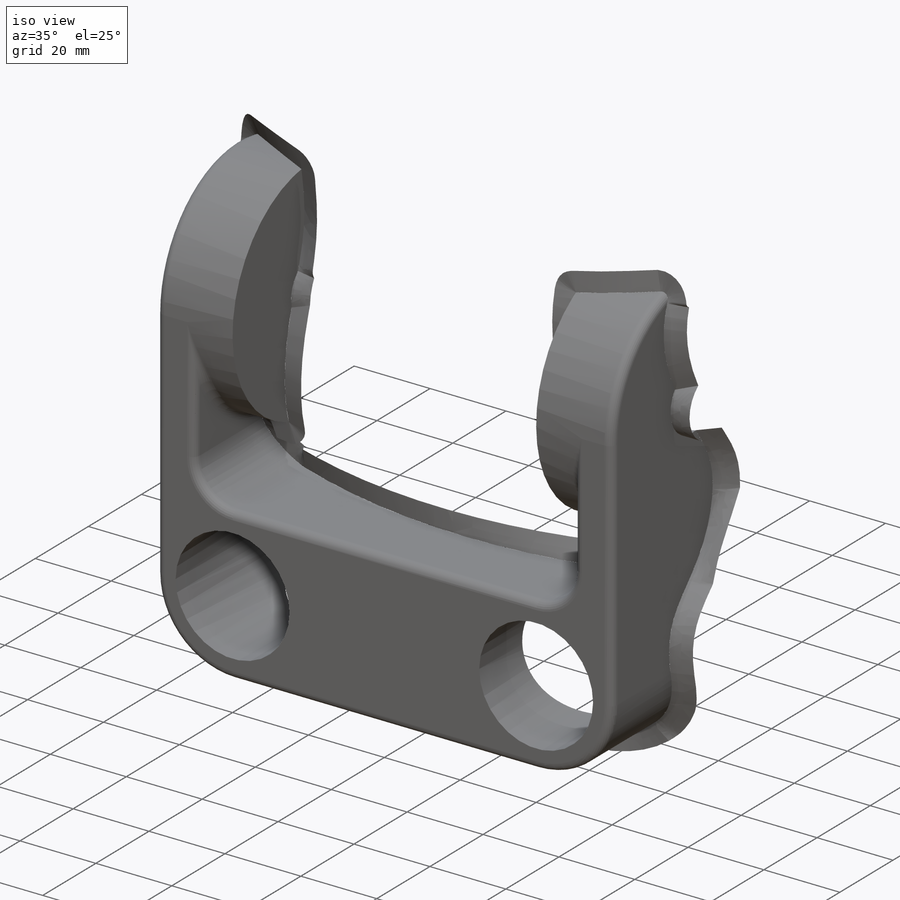
[diagram: iso view]
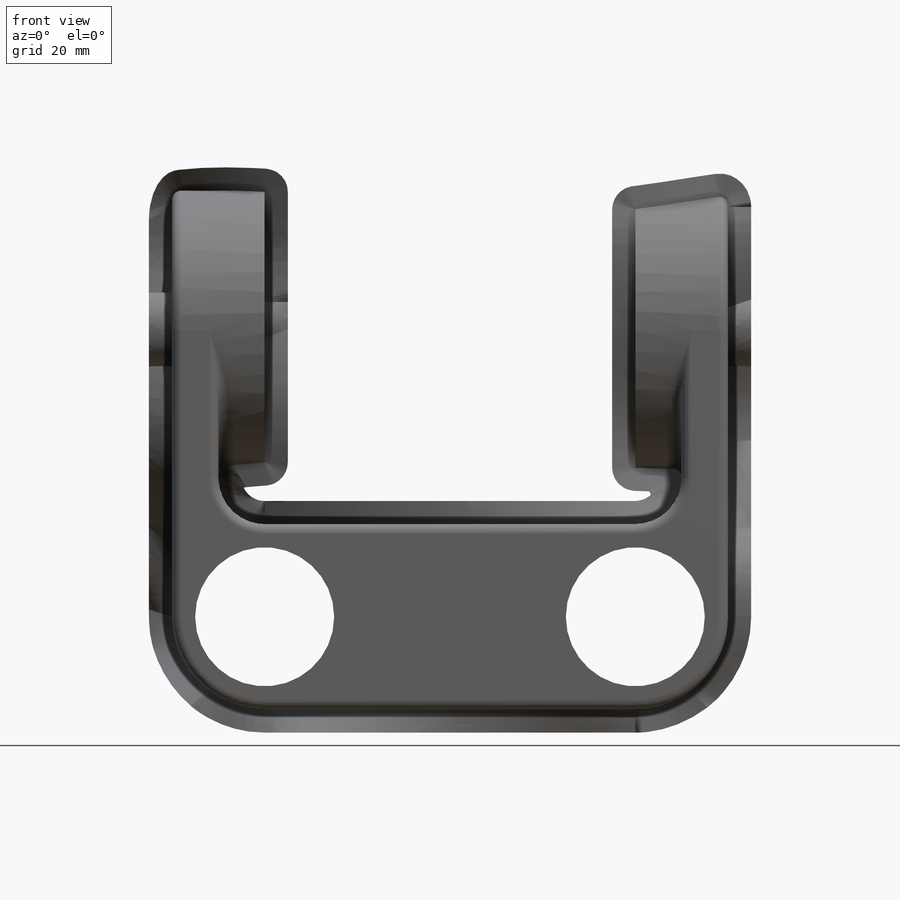
[diagram: front view]
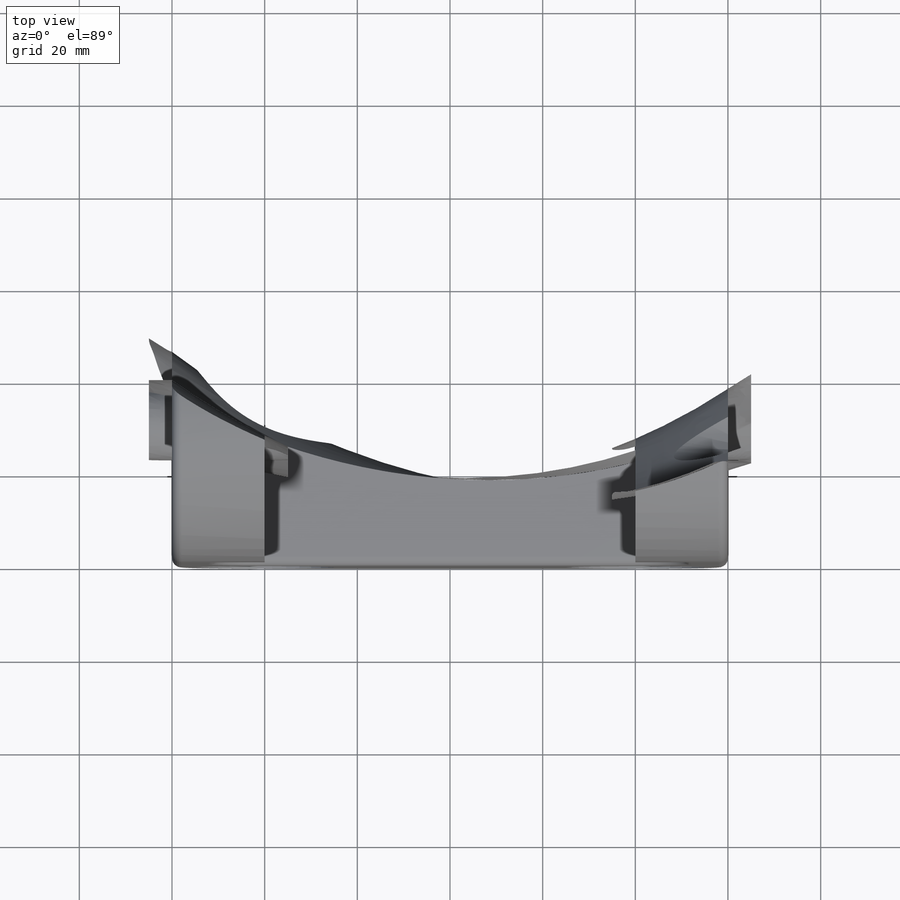
[diagram: top view]
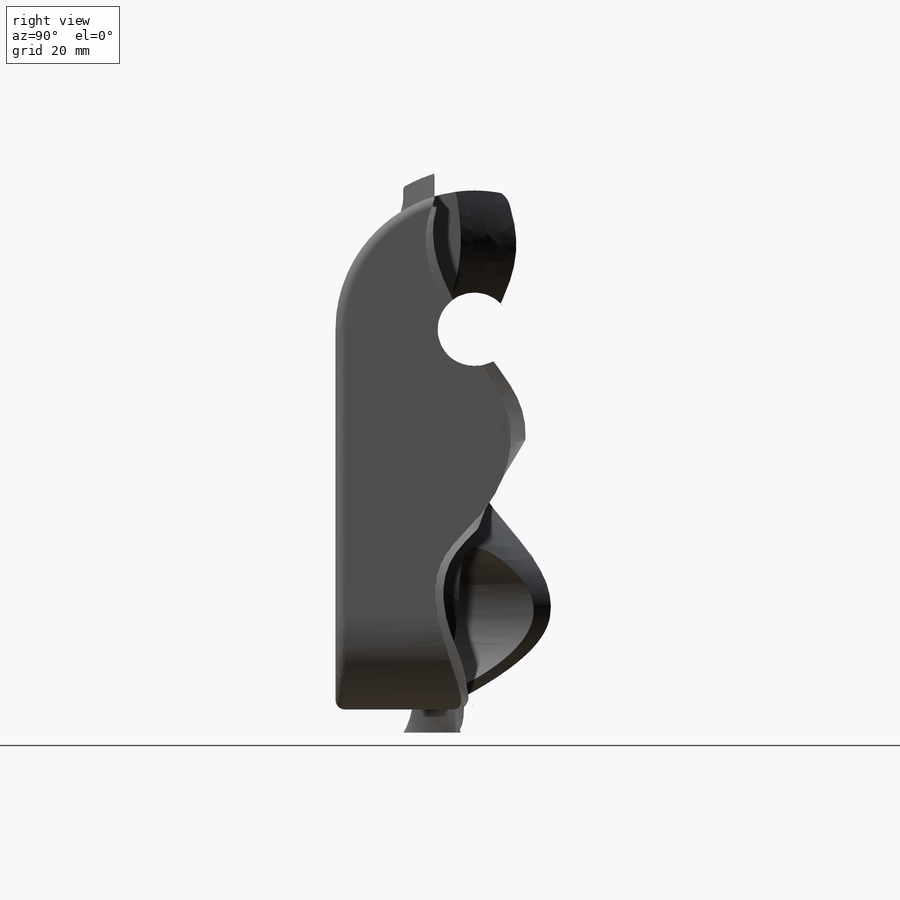
[diagram: right view]
SOLIDWORKS PART (.sldprt)
format: sldprt  version: not decoded by parser v0  size: 1,290,752 bytes
history: native  units: mm
features: sketch x8, extrude x4, fillet x4, material x1, mirror x1, plane x1 + 2 further entries (+12 scaffold rows collapsed)
feature tree (33):
  scaffold x12  (default folders/planes/origin — collapsed)
  material  "6061 Alloy"
  "Core Surface Bodies"
  "Parting Surface Bodies"
  sketch  "Sketch1"  dims[D1=30.0mm D2=80.0mm D3=40.0mm D4=120.0mm]
  extrude  "Boss-Extrude1"  Depth=60mm
  sketch  "Sketch2"  dims[D1=16.0mm D2=60.0mm D3=42.0mm]
  extrude  "Boss-Extrude2"  Depth=20mm
  extrude  "Boss-Extrude3"  [1 undecoded]
  sketch  "Sketch2<3>"  dims[D1=10.0mm]
  extrude  "Cut-Extrude4"  [1 undecoded]
  sketch  "Sketch2<4>"  dims[D1=54.0mm]
  mirror  "Mirror1"
  fillet  "Fillet4"  Radius=10mm
  fillet  "Fillet1"  Radius=2mm
  fillet  "Fillet2"  Radius=20mm
  fillet  "Fillet3"  Radius=2mm ModelUUID=0mm UUID=0mm
  sketch  "Sketch3"
  sketch  "Sketch4"
  sketch  "Sketch5"
  plane  "Plane1"  Offset=50mm
  sketch  "Sketch7"
decode coverage: 10 of 17 modeling features carry decoded parameters; 2 rows unclassified (native names shown)
note: 2 parameter values undecoded
note: suppression state not decoded; provenance and decode notes live in map.json
